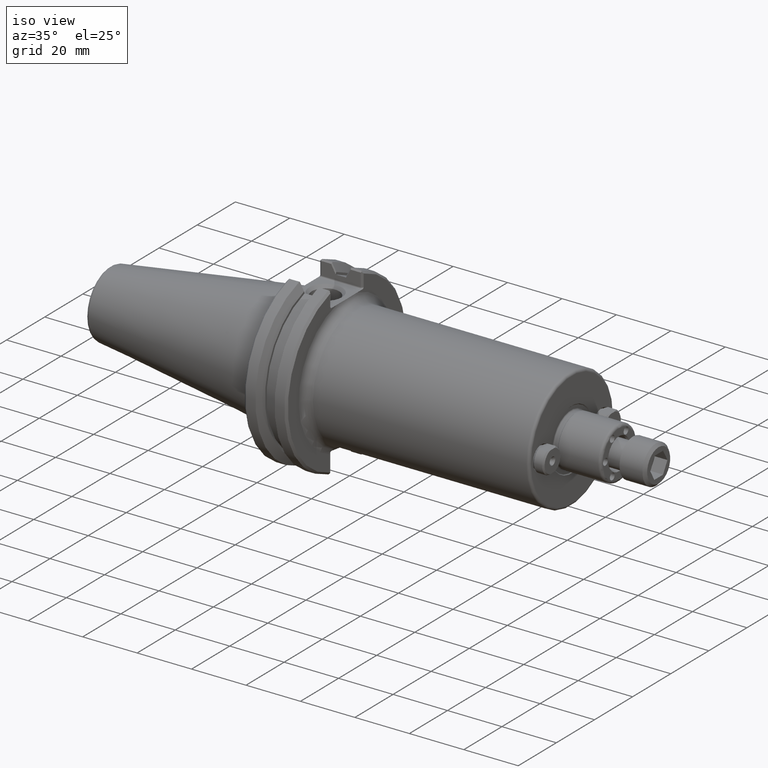
[diagram: clean part render]
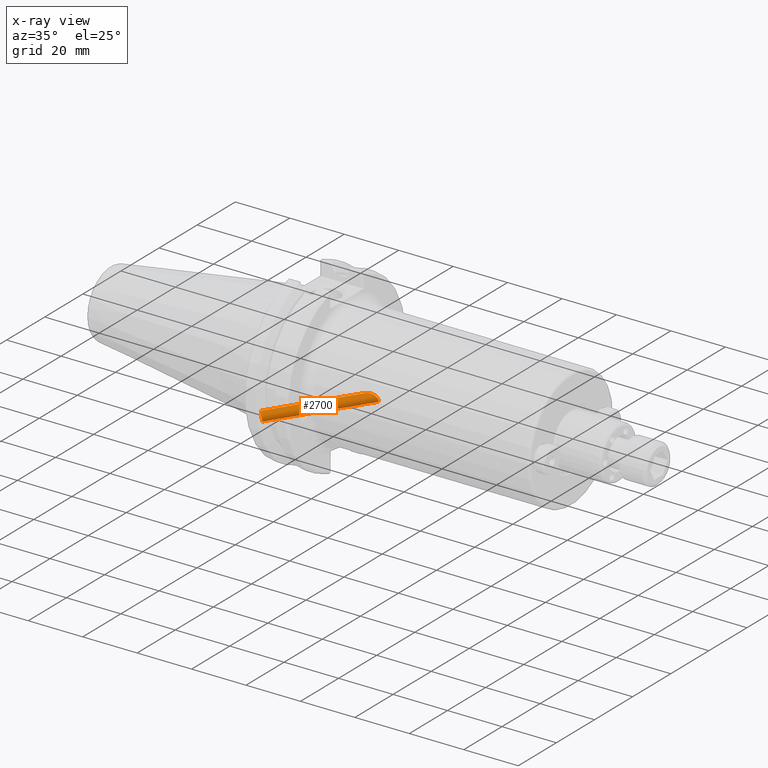
[diagram: x-ray — body ghosted, one internal face saturated and labeled with its STEP entity id]
A machine part, iso view, then the same camera in x-ray: the body is ghosted and one INTERNAL B-rep face — a face not visible from any outside direction — is saturated and labeled: STEP entity #2700.
In plain terms, the highlighted cylindrical surface (bore or boss wall) has radius 1.65 mm, axis along (0.8192, 0.539, 0.1962).
Its self-contained STEP definition (entity closure, byte-faithful):
#233=B_SPLINE_CURVE_WITH_KNOTS('',3,(#4092,#4093,#4094,#4095,#4096,#4097,
#4098,#4099,#4100,#4101,#4102,#4103,#4104,#4105,#4106,#4107,#4108,#4109,
#4110,#4111,#4112,#4113,#4114,#4115,#4116,#4117,#4118,#4119,#4120,#4121,
#4122,#4123,#4124,#4125,#4126,#4127,#4128,#4129,#4130,#4131,#4132,#4133),
 .UNSPECIFIED.,.T.,.F.,(4,2,2,2,2,2,2,2,2,2,2,2,2,2,2,2,2,2,2,2,4),(0.,
0.0941185685439246,0.188237137087849,0.257351988382149,0.291909414029299,
0.326466839676449,0.361024265323598,0.395581690970748,0.464696542265048,
0.558815110808973,0.652933679352897,0.775100946413251,0.897268213473606,
0.961129855788099,0.993060676945346,1.02499149810259,1.05692231925984,1.08885314041709,
1.15271478273158,1.27488204979193,1.39704931685229),.UNSPECIFIED.);
#301=FACE_BOUND('',#650,.T.);
#464=FACE_OUTER_BOUND('',#649,.T.);
#649=EDGE_LOOP('',(#1996));
#650=EDGE_LOOP('',(#1997));
#920=CIRCLE('',#2914,0.0649606299212597);
#1326=VERTEX_POINT('',#4088);
#1327=VERTEX_POINT('',#4091);
#1600=EDGE_CURVE('',#1326,#1326,#920,.T.);
#1601=EDGE_CURVE('',#1327,#1327,#233,.T.);
#1996=ORIENTED_EDGE('',*,*,#1601,.F.);
#1997=ORIENTED_EDGE('',*,*,#1600,.F.);
#2638=CYLINDRICAL_SURFACE('',#2915,0.06496062992126);
#2700=ADVANCED_FACE('',(#464,#301),#2638,.F.);
#2914=AXIS2_PLACEMENT_3D('',#4089,#3309,#3310);
#2915=AXIS2_PLACEMENT_3D('',#4090,#3311,#3312);
#3309=DIRECTION('center_axis',(0.819152044288992,0.538985544695755,0.196174694969011));
#3310=DIRECTION('ref_axis',(0.573576436351044,-0.769751131320058,-0.280166499593236));
#3311=DIRECTION('center_axis',(0.819152044288992,0.538985544695755,0.196174694969011));
#3312=DIRECTION('ref_axis',(0.573576436351045,-0.769751131320058,-0.280166499593236));
#4088=CARTESIAN_POINT('',(0.225664856799823,-1.00717758107284,-0.366582660130749));
#4089=CARTESIAN_POINT('Origin',(0.188404970186468,-0.957174062699688,-0.348382867834338));
#4090=CARTESIAN_POINT('Origin',(0.858637230406985,-0.51617473618128,-0.187872239650196));
#4091=CARTESIAN_POINT('',(1.27841928612079,-0.217748755372063,-0.148383723952182));
#4092=CARTESIAN_POINT('Ctrl Pts',(1.27841928612079,-0.217748755372063,-0.148383723952182));
#4093=CARTESIAN_POINT('Ctrl Pts',(1.2907708043024,-0.217748755372063,-0.148383723952182));
#4094=CARTESIAN_POINT('Ctrl Pts',(1.30426173600602,-0.218460541730426,-0.147366925768107));
#4095=CARTESIAN_POINT('Ctrl Pts',(1.33009910937331,-0.221894700903536,-0.142143454503141));
#4096=CARTESIAN_POINT('Ctrl Pts',(1.34244231296722,-0.224626024367402,-0.137926658461363));
#4097=CARTESIAN_POINT('Ctrl Pts',(1.36014582469286,-0.230663837118393,-0.127485389820572));
#4098=CARTESIAN_POINT('Ctrl Pts',(1.36732132598744,-0.233950168579115,-0.121505197916591));
#4099=CARTESIAN_POINT('Ctrl Pts',(1.37479141203149,-0.239153240785921,-0.110697622910721));
#4100=CARTESIAN_POINT('Ctrl Pts',(1.37675618674983,-0.240929444082725,-0.106793879084501));
#4101=CARTESIAN_POINT('Ctrl Pts',(1.37938988018166,-0.244381975637176,-0.0986369513905315));
#4102=CARTESIAN_POINT('Ctrl Pts',(1.38005973346807,-0.246057911656771,-0.0943839032878339));
#4103=CARTESIAN_POINT('Ctrl Pts',(1.38005973346807,-0.249160099497402,-0.0858607122447934));
#4104=CARTESIAN_POINT('Ctrl Pts',(1.37938988018166,-0.250610064646383,-0.081525417471381));
#4105=CARTESIAN_POINT('Ctrl Pts',(1.37675618674983,-0.253208444089196,-0.0730576038332395));
#4106=CARTESIAN_POINT('Ctrl Pts',(1.37479141203149,-0.254357071586714,-0.0689254410963333));
#4107=CARTESIAN_POINT('Ctrl Pts',(1.36732132598744,-0.257318262340074,-0.0573018879726558));
#4108=CARTESIAN_POINT('Ctrl Pts',(1.36014582469286,-0.258644779645768,-0.0506083820515509));
#4109=CARTESIAN_POINT('Ctrl Pts',(1.34244231296722,-0.260731064850988,-0.038728875004216));
#4110=CARTESIAN_POINT('Ctrl Pts',(1.33009910937331,-0.261349253937363,-0.0337429609480269));
#4111=CARTESIAN_POINT('Ctrl Pts',(1.30426173600602,-0.262076117994689,-0.0275341148455416));
#4112=CARTESIAN_POINT('Ctrl Pts',(1.2907708043024,-0.262184443284453,-0.0262976747949576));
#4113=CARTESIAN_POINT('Ctrl Pts',(1.26238683637533,-0.262184443284453,-0.0262976747949576));
#4114=CARTESIAN_POINT('Ctrl Pts',(1.24497782537501,-0.262003796904799,-0.0283610496676856));
#4115=CARTESIAN_POINT('Ctrl Pts',(1.21144156083457,-0.260952008292581,-0.0368020212418928));
#4116=CARTESIAN_POINT('Ctrl Pts',(1.19528944288757,-0.26009822987886,-0.0430826889351396));
#4117=CARTESIAN_POINT('Ctrl Pts',(1.17474192841582,-0.257517904507579,-0.0560112615224797));
#4118=CARTESIAN_POINT('Ctrl Pts',(1.16759102726376,-0.256277497072648,-0.0616456859355566));
#4119=CARTESIAN_POINT('Ctrl Pts',(1.15964042586479,-0.253641455195446,-0.0714827704585131));
#4120=CARTESIAN_POINT('Ctrl Pts',(1.15744652515928,-0.252633067774649,-0.074990932696225));
#4121=CARTESIAN_POINT('Ctrl Pts',(1.15440145630832,-0.250333436803,-0.0823421385708528));
#4122=CARTESIAN_POINT('Ctrl Pts',(1.15354892931257,-0.249042205580854,-0.0861846231184004));
#4123=CARTESIAN_POINT('Ctrl Pts',(1.15354892931257,-0.24617580557332,-0.094059992414227));
#4124=CARTESIAN_POINT('Ctrl Pts',(1.15440145630832,-0.244695044618251,-0.0978334937804821));
#4125=CARTESIAN_POINT('Ctrl Pts',(1.15744652515928,-0.24173140009284,-0.104943018486391));
#4126=CARTESIAN_POINT('Ctrl Pts',(1.15964042586479,-0.240248866453882,-0.108278605614003));
#4127=CARTESIAN_POINT('Ctrl Pts',(1.16759102726376,-0.235945035638946,-0.117508664606585));
#4128=CARTESIAN_POINT('Ctrl Pts',(1.17474192841582,-0.233273504661237,-0.122622202648534));
#4129=CARTESIAN_POINT('Ctrl Pts',(1.19528944288757,-0.22693982230327,-0.134184665014145));
#4130=CARTESIAN_POINT('Ctrl Pts',(1.21144156083457,-0.223556719138978,-0.139544733785391));
#4131=CARTESIAN_POINT('Ctrl Pts',(1.24497782537501,-0.218936684019087,-0.146686969842281));
#4132=CARTESIAN_POINT('Ctrl Pts',(1.26238683637533,-0.217748755372063,-0.148383723952182));
#4133=CARTESIAN_POINT('Ctrl Pts',(1.27841928612079,-0.217748755372063,-0.148383723952182));